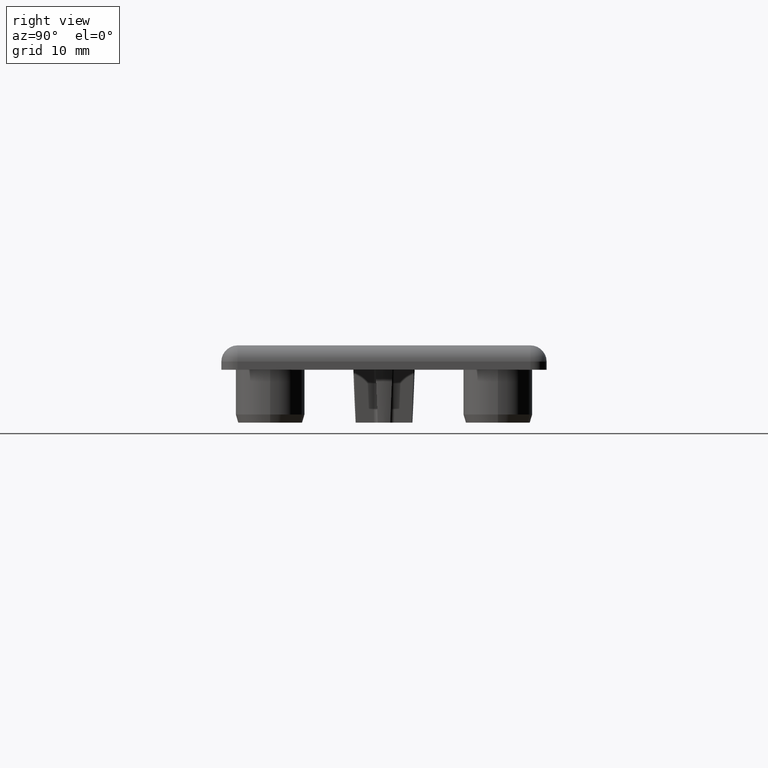
[diagram: clean part render]
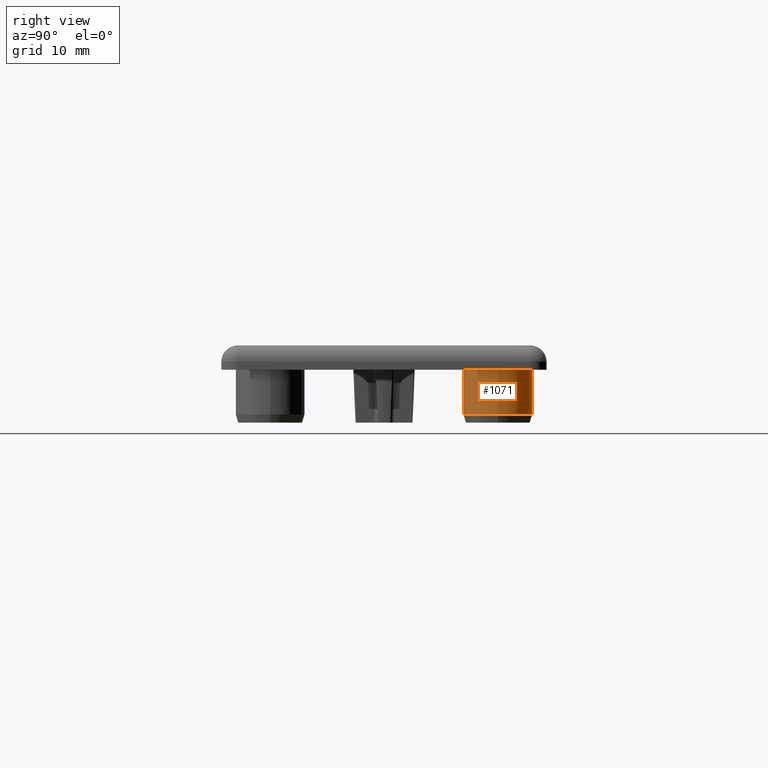
[diagram: same view with one face highlighted and labeled with its STEP entity id]
A machine part, right view. The second image highlights one B-rep face of the part: STEP entity #1071.
In plain terms, the highlighted cylindrical surface (bore or boss wall) has radius 4.25 mm, axis along (0, 0, 1).
Its self-contained STEP definition (entity closure, byte-faithful):
#209=CYLINDRICAL_SURFACE('',#1162,4.25);
#232=FACE_BOUND('',#343,.T.);
#257=FACE_OUTER_BOUND('',#342,.T.);
#342=EDGE_LOOP('',(#760));
#343=EDGE_LOOP('',(#761));
#422=CIRCLE('',#1160,4.25);
#424=CIRCLE('',#1163,4.25);
#490=VERTEX_POINT('',#1666);
#492=VERTEX_POINT('',#1671);
#594=EDGE_CURVE('',#490,#490,#422,.T.);
#596=EDGE_CURVE('',#492,#492,#424,.T.);
#760=ORIENTED_EDGE('',*,*,#596,.F.);
#761=ORIENTED_EDGE('',*,*,#594,.F.);
#1071=ADVANCED_FACE('',(#257,#232),#209,.T.);
#1160=AXIS2_PLACEMENT_3D('',#1667,#1333,#1334);
#1162=AXIS2_PLACEMENT_3D('',#1670,#1337,#1338);
#1163=AXIS2_PLACEMENT_3D('',#1672,#1339,#1340);
#1333=DIRECTION('center_axis',(0.,0.,-1.));
#1334=DIRECTION('ref_axis',(-1.,0.,0.));
#1337=DIRECTION('center_axis',(0.,0.,1.));
#1338=DIRECTION('ref_axis',(-1.,0.,0.));
#1339=DIRECTION('center_axis',(0.,0.,1.));
#1340=DIRECTION('ref_axis',(-1.,0.,0.));
#1666=CARTESIAN_POINT('',(38.25,14.,-5.5));
#1667=CARTESIAN_POINT('Origin',(34.,14.,-5.5));
#1670=CARTESIAN_POINT('Origin',(34.,14.,-6.5));
#1671=CARTESIAN_POINT('',(38.25,14.,0.));
#1672=CARTESIAN_POINT('Origin',(34.,14.,0.));